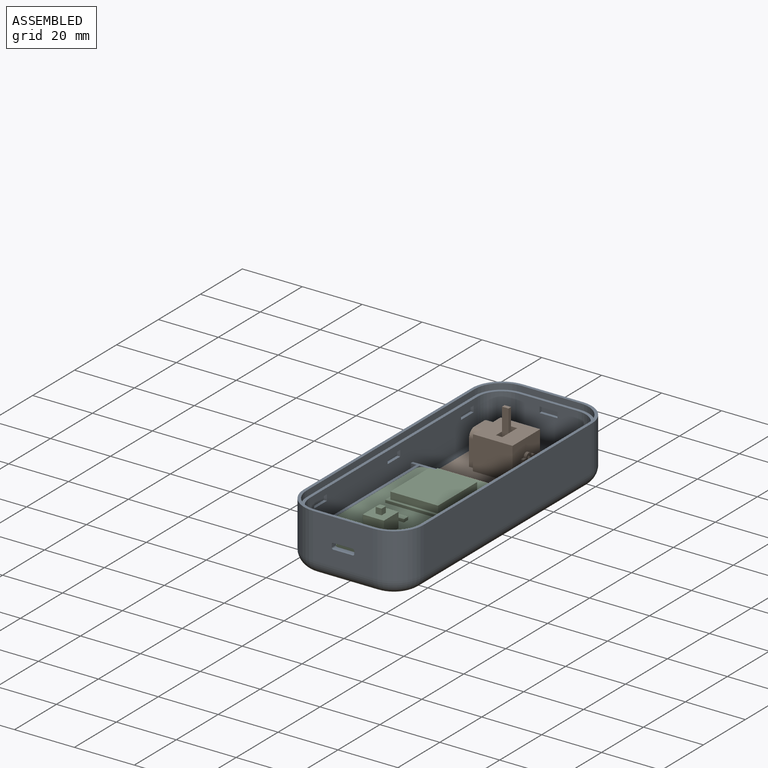
[diagram: assembled view]
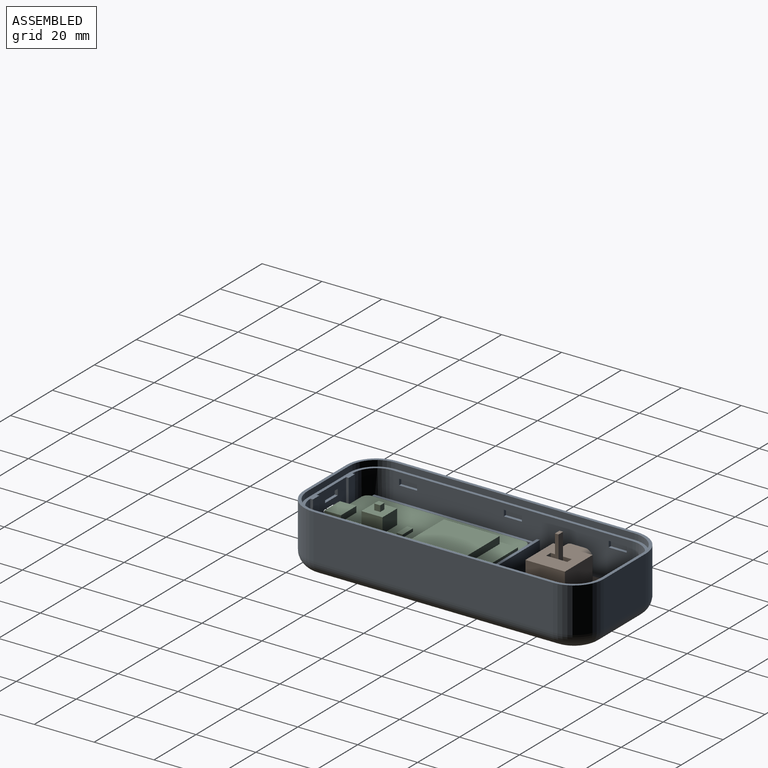
[diagram: assembled view, second angle]
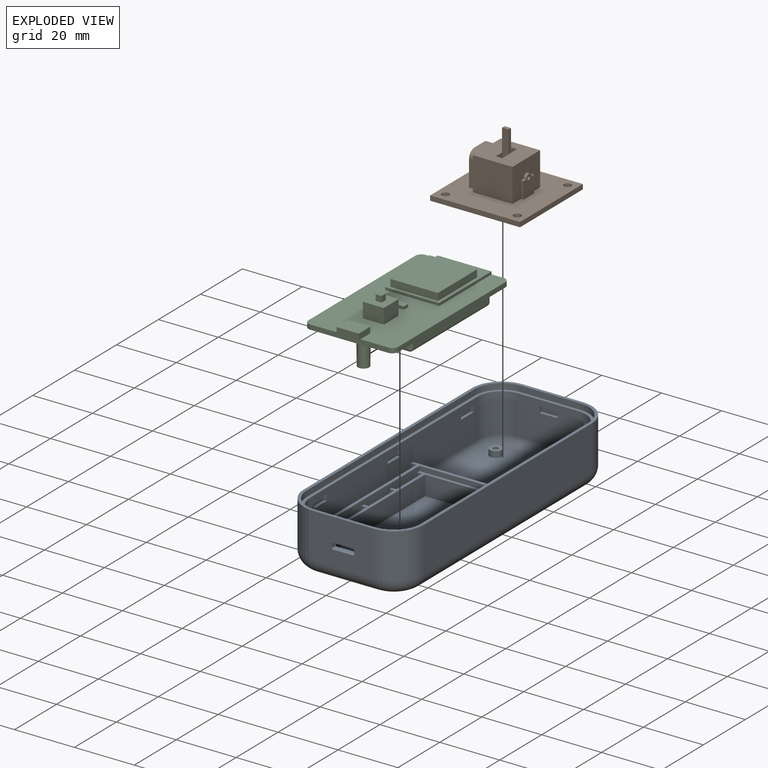
[diagram: exploded view]
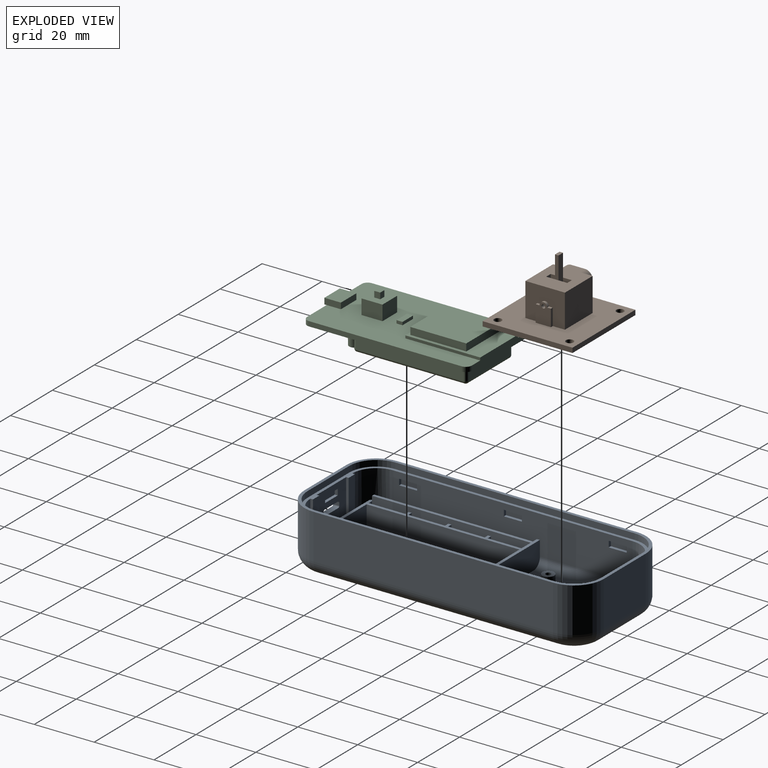
[diagram: exploded view, second angle]
ASSEMBLY  parts=3 mates=4
PART A: 212 faces, bbox 41.7x101.7x20.1 mm
  f0: plane 14x13mm, normal (0,1,0), area 155.2mm2, adj f10,f12,f80,f155,f156,f157,f158,f159
  f1: plane 20x13mm, normal (0,-1,0), area 248mm2, adj f7,f8,f100,f163,f203,f204,f205,f206
  f2: plane 80x13mm, normal (1,0,0), area 984.9mm2, adj f5,f8,f34,f41,f42,f43,f57,f63
  f3: plane 80x13mm, normal (-1,0,0), area 984.9mm2, adj f6,f7,f17,f18,f19,f20,f21,f22
  f4: plane 100x40mm, normal (0,0,1), area 259.7mm2, adj f15,f82,f83,f84,f86,f87,f88,f89
  f5: cylinder r=8mm len=13mm, axis (0,0,1), area 158.5mm2, adj f2,f11,f40,f71,f81,f106,f114,f163
  f6: cylinder r=8mm len=13mm, axis (0,0,-1), area 158.5mm2, adj f3,f14,f24,f40,f70,f106,f115,f163
  f7: cylinder r=8mm len=13mm, axis (0,0,1), area 163.4mm2, adj f1,f3,f98,f163
  f8: cylinder r=8mm len=13mm, axis (0,0,-1), area 163.4mm2, adj f1,f2,f101,f163
  f9: plane 15.09x3mm, normal (0,1,0), area 45.3mm2, adj f10,f11,f80,f163
  f10: plane 15.09x0.85mm, normal (1,0,0), area 12.3mm2, adj f0,f9,f80,f163
  f11: plane 15.09x0.85mm, normal (-1,0,0), area 12.3mm2, adj f5,f9,f81,f163
  f12: plane 15.09x0.85mm, normal (-1,0,0), area 12.3mm2, adj f0,f13,f80,f163
  f13: plane 15.09x3mm, normal (0,1,0), area 45.3mm2, adj f12,f14,f80,f163
  f14: plane 15.09x0.85mm, normal (1,0,0), area 12.3mm2, adj f6,f13,f70,f163
  f15: plane 20x15mm, normal (0,-1,0), area 285.2mm2, adj f4,f86,f87,f95,f155,f156,f157,f158
  f16: plane 30.15x1.6mm, normal (0,-1,0), area 48.2mm2, adj f40,f144,f147,f150
  f17: plane 1.93x1mm, normal (0,0,1), area 1.9mm2, adj f3,f26,f145,f151
  f18: plane 1.93x1mm, normal (0,0,1), area 1.9mm2, adj f3,f32,f33,f151
  f19: plane 1.93x1mm, normal (0,0,1), area 1.9mm2, adj f3,f28,f29,f151
  f20: plane 1.93x1mm, normal (0,0,1), area 1.9mm2, adj f3,f30,f31,f151
  f21: cylinder r=3mm len=12.25mm, axis (0,1,0), area 44.3mm2, adj f3,f28,f33,f151
  f22: cylinder r=3mm len=7.25mm, axis (0,1,0), area 26.2mm2, adj f3,f24,f31,f151
  f23: cylinder r=3mm len=12.25mm, axis (0,1,0), area 44.3mm2, adj f3,f29,f30,f151
  f24: torus R=5mm, axis (0,0,1), area 15.1mm2, adj f6,f22,f115,f151
  f25: cylinder r=3mm len=12.25mm, axis (0,1,0), area 44.3mm2, adj f3,f26,f32,f151
  f26: plane 6.3x1.93mm, normal (0,-1,0), area 10.7mm2, adj f3,f17,f25,f151
  f27: plane 6.29x1.58mm, normal (0,1,0), area 9.5mm2, adj f40,f59,f79,f150
  f28: plane 6.3x1.93mm, normal (0,1,0), area 10.7mm2, adj f3,f19,f21,f151
  f29: plane 6.3x1.93mm, normal (0,-1,0), area 10.7mm2, adj f3,f19,f23,f151
  f30: plane 6.3x1.93mm, normal (0,1,0), area 10.7mm2, adj f3,f20,f23,f151
  f31: plane 6.3x1.93mm, normal (0,-1,0), area 10.7mm2, adj f3,f20,f22,f151
  f32: plane 6.3x1.93mm, normal (0,1,0), area 10.7mm2, adj f3,f18,f25,f151
  f33: plane 6.3x1.93mm, normal (0,-1,0), area 10.7mm2, adj f3,f18,f21,f151
  f34: plane 1.93x1.6mm, normal (0,-1,0), area 3.1mm2, adj f2,f41,f144,f148
  f35: cylinder r=3mm len=12.25mm, axis (0,-1,0), area 0.9mm2, adj f46,f50,f55,f147
  f36: cylinder r=3mm len=7.25mm, axis (0,-1,0), area 0.5mm2, adj f38,f48,f61,f147
  f37: cylinder r=3mm len=12.25mm, axis (0,-1,0), area 0.9mm2, adj f47,f49,f67,f147
  f38: torus R=5mm, axis (0,0,1), area 4.4mm2, adj f36,f45,f61,f62,f147
  f39: cylinder r=3mm len=12.25mm, axis (0,-1,0), area 0.9mm2, adj f44,f51,f74,f147
  f40: plane 54x32.49mm, normal (0,0,1), area 175.2mm2, adj f5,f6,f16,f27,f44,f45,f46,f47
  f41: plane 1.93x1mm, normal (0,0,1), area 1.9mm2, adj f2,f34,f112,f148
  f42: plane 1.93x1mm, normal (0,0,1), area 1.9mm2, adj f2,f124,f125,f148
  f43: plane 1.93x1mm, normal (0,0,1), area 1.9mm2, adj f2,f116,f117,f148
  f44: plane 6.5x1.58mm, normal (0,-1,0), area 10.2mm2, adj f39,f40,f74,f76,f147
  f45: plane 6.29x1.58mm, normal (0,1,0), area 9.5mm2, adj f38,f40,f62,f147
  f46: plane 6.5x1.58mm, normal (0,1,0), area 10.2mm2, adj f35,f40,f55,f56,f147
  f47: plane 6.5x1.58mm, normal (0,-1,0), area 10.2mm2, adj f37,f40,f67,f68,f147
  f48: plane 6.5x1.58mm, normal (0,-1,0), area 10.2mm2, adj f36,f40,f61,f62,f147
  f49: plane 6.5x1.58mm, normal (0,1,0), area 10.2mm2, adj f37,f40,f67,f68,f147
  f50: plane 6.5x1.58mm, normal (0,-1,0), area 10.2mm2, adj f35,f40,f55,f56,f147
  f51: plane 6.5x1.58mm, normal (0,1,0), area 10.2mm2, adj f39,f40,f74,f76,f147
  f52: plane 12.25x1.5mm, normal (0,0,1), area 18.4mm2, adj f53,f54,f118,f127
  f53: plane 12.25x6.5mm, normal (1,0,0), area 79.6mm2, adj f40,f52,f118,f127
  f54: cylinder r=3mm len=12.25mm, axis (0,1,0), area 0.9mm2, adj f52,f118,f127,f150
  f55: plane 12.25x1.5mm, normal (0,0,1), area 18.4mm2, adj f35,f46,f50,f56
  f56: plane 12.25x6.5mm, normal (-1,0,0), area 79.6mm2, adj f40,f46,f50,f55
  f57: cylinder r=3mm len=12.25mm, axis (0,-1,0), area 44.3mm2, adj f2,f116,f124,f148
  f58: plane 10.82x1.5mm, normal (0,0,1), area 14.6mm2, adj f59,f60,f79,f123
  f59: plane 12.25x6.5mm, normal (1,0,0), area 79.5mm2, adj f27,f40,f58,f79,f123
  f60: cylinder r=3mm len=7.25mm, axis (0,1,0), area 0.5mm2, adj f58,f79,f123,f150
  f61: plane 10.82x1.5mm, normal (0,0,1), area 14.6mm2, adj f36,f38,f48,f62
  f62: plane 12.25x6.5mm, normal (-1,0,0), area 79.5mm2, adj f38,f40,f45,f48,f61
  f63: cylinder r=3mm len=7.25mm, axis (0,-1,0), area 26.2mm2, adj f2,f71,f120,f148
  f64: plane 12.25x1.5mm, normal (0,0,1), area 18.4mm2, adj f65,f66,f119,f122
  f65: plane 12.25x6.5mm, normal (1,0,0), area 79.6mm2, adj f40,f64,f119,f122
  f66: cylinder r=3mm len=12.25mm, axis (0,1,0), area 0.9mm2, adj f64,f119,f122,f150
  f67: plane 12.25x1.5mm, normal (0,0,1), area 18.4mm2, adj f37,f47,f49,f68
  f68: plane 12.25x6.5mm, normal (-1,0,0), area 79.6mm2, adj f40,f47,f49,f67
  f69: cylinder r=3mm len=12.25mm, axis (0,-1,0), area 44.3mm2, adj f2,f117,f121,f148
  f70: torus R=5mm, axis (0,0,1), area 15.8mm2, adj f6,f14,f80,f106
  f71: torus R=5mm, axis (0,0,1), area 15.1mm2, adj f5,f63,f114,f148
  f72: plane 12.25x1.5mm, normal (0,0,1), area 18.4mm2, adj f99,f102,f113,f126
  f73: cylinder r=3mm len=31mm, axis (0,1,0), area 146.1mm2, adj f3,f75,f98,f146
  f74: plane 12.25x1.5mm, normal (0,0,1), area 18.4mm2, adj f39,f44,f51,f76
  f75: plane 36x30mm, normal (0,0,1), area 1019mm2, adj f73,f77,f98,f100,f101,f128,f133,f137
  f76: plane 12.25x6.5mm, normal (-1,0,0), area 79.6mm2, adj f40,f44,f51,f74
  f77: cylinder r=3mm len=31mm, axis (0,-1,0), area 146.1mm2, adj f2,f75,f101,f146
  f78: cylinder r=3mm len=12.25mm, axis (0,-1,0), area 44.3mm2, adj f2,f112,f125,f148
  f79: torus R=5mm, axis (0,0,1), area 4.4mm2, adj f27,f58,f59,f60,f150
  f80: cylinder r=3mm len=20mm, axis (1,0,0), area 60mm2, adj f0,f9,f10,f12,f13,f70,f81,f106
  f81: torus R=5mm, axis (0,0,1), area 15.8mm2, adj f5,f11,f80,f106
  f82: plane 80x15mm, normal (-1,0,0), area 1200mm2, adj f4,f86,f89,f96
  f83: plane 80x15mm, normal (1,0,0), area 1200mm2, adj f4,f87,f88,f91
  f84: plane 20x15mm, normal (0,1,0), area 300mm2, adj f4,f88,f89,f92
  f85: plane 90x30mm, normal (0,0,-1), area 2654.8mm2, adj f90,f91,f92,f93,f94,f95,f96,f97
  f86: cylinder r=10mm len=15mm, axis (0,0,1), area 235.6mm2, adj f4,f15,f82,f97
  f87: cylinder r=10mm len=15mm, axis (0,0,-1), area 235.6mm2, adj f4,f15,f83,f93
  f88: cylinder r=10mm len=15mm, axis (0,0,1), area 235.6mm2, adj f4,f83,f84,f90
  f89: cylinder r=10mm len=15mm, axis (0,0,-1), area 235.6mm2, adj f4,f82,f84,f94
  f90: torus R=5mm, axis (0,0,1), area 101mm2, adj f85,f88,f91,f92
  f91: cylinder r=5mm len=80mm, axis (0,1,0), area 628.3mm2, adj f83,f85,f90,f93
  f92: cylinder r=5mm len=20mm, axis (-1,0,0), area 157.1mm2, adj f84,f85,f90,f94
  f93: torus R=5mm, axis (0,0,1), area 101mm2, adj f85,f87,f91,f95
  f94: torus R=5mm, axis (0,0,1), area 101mm2, adj f85,f89,f92,f96
  f95: cylinder r=5mm len=20mm, axis (1,0,0), area 157.1mm2, adj f15,f85,f93,f97
  f96: cylinder r=5mm len=80mm, axis (0,-1,0), area 628.3mm2, adj f82,f85,f94,f97
  f97: torus R=5mm, axis (0,0,1), area 101mm2, adj f85,f86,f95,f96
  f98: torus R=5mm, axis (0,0,1), area 51.1mm2, adj f7,f73,f75,f100
  f99: cylinder r=3mm len=12.25mm, axis (0,1,0), area 0.9mm2, adj f72,f113,f126,f150
  f100: cylinder r=3mm len=20mm, axis (-1,0,0), area 94.2mm2, adj f1,f75,f98,f101
  f101: torus R=5mm, axis (0,0,1), area 51.1mm2, adj f8,f75,f77,f100
  f102: plane 12.25x6.5mm, normal (1,0,0), area 79.6mm2, adj f40,f72,f113,f126
  f103: plane 52.02x6.52mm, normal (-1,0,0), area 338mm2, adj f40,f104,f107,f110,f111
  f104: plane 25x6.5mm, normal (0,1,0), area 162.4mm2, adj f40,f103,f105,f109,f110,f111
  f105: plane 52.02x6.52mm, normal (1,0,0), area 338mm2, adj f40,f104,f107,f109,f111
  f106: plane 30.59x6.33mm, normal (0,-1,0), area 188.1mm2, adj f5,f6,f40,f70,f80,f81
  f107: plane 25x6.5mm, normal (0,-1,0), area 162.5mm2, adj f40,f103,f105,f111
  f108: plane 1.93x1mm, normal (0,0,1), area 1.9mm2, adj f2,f120,f121,f148
  f109: torus R=5mm, axis (0,0,1), area 0.5mm2, adj f104,f105,f111
  f110: torus R=5mm, axis (0,0,1), area 0.5mm2, adj f103,f104,f111
  f111: plane 52x25mm, normal (0,0,1), area 1283mm2, adj f103,f104,f105,f107,f109,f110,f153
  f112: plane 6.3x1.93mm, normal (0,-1,0), area 10.7mm2, adj f2,f41,f78,f148
  f113: plane 6.5x1.58mm, normal (0,-1,0), area 10.2mm2, adj f40,f72,f99,f102,f150
  f114: plane 4.44x0.23mm, normal (0,1,0), area 0.7mm2, adj f5,f40,f71,f148
  f115: plane 4.44x0.23mm, normal (0,1,0), area 0.7mm2, adj f6,f24,f40,f151
  f116: plane 6.3x1.93mm, normal (0,1,0), area 10.7mm2, adj f2,f43,f57,f148
  f117: plane 6.3x1.93mm, normal (0,-1,0), area 10.7mm2, adj f2,f43,f69,f148
  f118: plane 6.5x1.58mm, normal (0,1,0), area 10.2mm2, adj f40,f52,f53,f54,f150
  f119: plane 6.5x1.58mm, normal (0,-1,0), area 10.2mm2, adj f40,f64,f65,f66,f150
  f120: plane 6.3x1.93mm, normal (0,-1,0), area 10.7mm2, adj f2,f63,f108,f148
  f121: plane 6.3x1.93mm, normal (0,1,0), area 10.7mm2, adj f2,f69,f108,f148
  f122: plane 6.5x1.58mm, normal (0,1,0), area 10.2mm2, adj f40,f64,f65,f66,f150
  f123: plane 6.5x1.58mm, normal (0,-1,0), area 10.2mm2, adj f40,f58,f59,f60,f150
  f124: plane 6.3x1.93mm, normal (0,-1,0), area 10.7mm2, adj f2,f42,f57,f148
  f125: plane 6.3x1.93mm, normal (0,1,0), area 10.7mm2, adj f2,f42,f78,f148
  f126: plane 6.5x1.58mm, normal (0,1,0), area 10.2mm2, adj f40,f72,f99,f102,f150
  f127: plane 6.5x1.58mm, normal (0,-1,0), area 10.2mm2, adj f40,f52,f53,f54,f150
  f128: cylinder r=2mm len=4mm, axis (0,0,-1), area 25.1mm2, adj f75,f130
  f129: cylinder r=0.88mm len=2mm, axis (0,0,-1), area 11mm2, adj f130,f131
  f130: plane 4x4mm, normal (0,0,1), area 10.2mm2, adj f128,f129
  f131: plane 1.75x1.75mm, normal (0,0,1), area 2.4mm2, adj f129
  f132: cylinder r=0.88mm len=2mm, axis (0,0,-1), area 11mm2, adj f134,f135
  f133: cylinder r=2mm len=4mm, axis (0,0,-1), area 25.1mm2, adj f75,f134
  f134: plane 4x4mm, normal (0,0,1), area 10.2mm2, adj f132,f133
  f135: plane 1.75x1.75mm, normal (0,0,1), area 2.4mm2, adj f132
  f136: cylinder r=0.88mm len=2mm, axis (0,0,-1), area 11mm2, adj f138,f139
  f137: cylinder r=2mm len=4mm, axis (0,0,-1), area 25.1mm2, adj f75,f138
  f138: plane 4x4mm, normal (0,0,1), area 10.2mm2, adj f136,f137
  f139: plane 1.75x1.75mm, normal (0,0,1), area 2.4mm2, adj f136
  f140: cylinder r=2mm len=4mm, axis (0,0,-1), area 25.1mm2, adj f75,f142
  f141: cylinder r=0.88mm len=2mm, axis (0,0,-1), area 11mm2, adj f142,f143
  f142: plane 4x4mm, normal (0,0,1), area 10.2mm2, adj f140,f141
  f143: plane 1.75x1.75mm, normal (0,0,1), area 2.4mm2, adj f141
  f144: plane 54x36mm, normal (0,0,1), area 142mm2, adj f2,f3,f16,f34,f145,f146,f147,f148
  f145: plane 1.93x1.6mm, normal (0,-1,0), area 3.1mm2, adj f3,f17,f144,f151
  f146: plane 36x8.1mm, normal (0,1,0), area 287.7mm2, adj f2,f3,f73,f75,f77,f144
  f147: plane 53x8.1mm, normal (1,0,0), area 402.3mm2, adj f16,f35,f36,f37,f38,f39,f40,f44
  f148: plane 53x7.9mm, normal (-1,0,0), area 391.3mm2, adj f34,f41,f42,f43,f57,f63,f69,f71
  f149: plane 1.6x1mm, normal (0,-1,0), area 1.6mm2, adj f40,f144,f147,f148
  f150: plane 53x8.1mm, normal (-1,0,0), area 402.3mm2, adj f16,f27,f40,f54,f60,f66,f79,f99
  f151: plane 53x7.9mm, normal (1,0,0), area 391.3mm2, adj f17,f18,f19,f20,f21,f22,f23,f24
  f152: plane 1.6x1mm, normal (0,-1,0), area 1.6mm2, adj f40,f144,f150,f151
  f153: cylinder r=2.25mm len=4.5mm, axis (0,0,1), area 21.2mm2, adj f111,f154
  f154: cone r=2.75mm half-angle=45deg, axis (0,0,-1), area 11.1mm2, adj f85,f153
  f155: plane 2x1mm, normal (1,0,0), area 2mm2, adj f0,f15,f159,f162
  f156: plane 6.5x2mm, normal (0,0,1), area 13mm2, adj f0,f15,f159,f160
  f157: plane 2x1mm, normal (-1,0,0), area 2mm2, adj f0,f15,f160,f161
  f158: plane 6.5x2mm, normal (0,0,-1), area 13mm2, adj f0,f15,f161,f162
  f159: cylinder r=0.5mm len=2mm, axis (0,-1,0), area 1.6mm2, adj f0,f15,f155,f156
  f160: cylinder r=0.5mm len=2mm, axis (0,1,0), area 1.6mm2, adj f0,f15,f156,f157
  f161: cylinder r=0.5mm len=2mm, axis (0,-1,0), area 1.6mm2, adj f0,f15,f157,f158
  f162: cylinder r=0.5mm len=2mm, axis (0,1,0), area 1.6mm2, adj f0,f15,f155,f158
  f163: plane 98x38mm, normal (0,0,1), area 258.5mm2, adj f0,f1,f2,f3,f5,f6,f7,f8
  f164: plane 20x2mm, normal (0,-1,0), area 40mm2, adj f4,f163,f165,f171
  f165: cylinder r=9mm len=9mm, axis (0,0,1), area 28.3mm2, adj f4,f163,f164,f166
  f166: plane 80x2mm, normal (1,0,0), area 160mm2, adj f4,f163,f165,f167
  f167: cylinder r=9mm len=9mm, axis (0,0,1), area 28.3mm2, adj f4,f163,f166,f168
  f168: plane 20x2mm, normal (0,1,0), area 40mm2, adj f4,f163,f167,f169
  f169: cylinder r=9mm len=9mm, axis (0,0,1), area 28.3mm2, adj f4,f163,f168,f170
  f170: plane 80x2mm, normal (-1,0,0), area 160mm2, adj f4,f163,f169,f171
  f171: cylinder r=9mm len=9mm, axis (0,0,1), area 28.3mm2, adj f4,f163,f164,f170
  f172: plane 6x2mm, normal (-1,0,0), area 12mm2, adj f173,f174,f175,f176
  f173: plane 6x1mm, normal (0,0,-1), area 6mm2, adj f3,f172,f174,f176
  f174: plane 2x1mm, normal (0,-1,0), area 2mm2, adj f3,f172,f173,f175
  f175: plane 6x1mm, normal (0,0,1), area 6mm2, adj f3,f172,f174,f176
  f176: plane 2x1mm, normal (0,1,0), area 2mm2, adj f3,f172,f173,f175
  f177: plane 6x2mm, normal (-1,0,0), area 12mm2, adj f178,f179,f180,f181
  f178: plane 6x1mm, normal (0,0,-1), area 6mm2, adj f3,f177,f179,f181
  f179: plane 2x1mm, normal (0,-1,0), area 2mm2, adj f3,f177,f178,f180
  f180: plane 6x1mm, normal (0,0,1), area 6mm2, adj f3,f177,f179,f181
  f181: plane 2x1mm, normal (0,1,0), area 2mm2, adj f3,f177,f178,f180
  f182: plane 6x2mm, normal (-1,0,0), area 12mm2, adj f183,f184,f185,f186
  f183: plane 6x1mm, normal (0,0,-1), area 6mm2, adj f3,f182,f184,f186
  f184: plane 2x1mm, normal (0,-1,0), area 2mm2, adj f3,f182,f183,f185
  f185: plane 6x1mm, normal (0,0,1), area 6mm2, adj f3,f182,f184,f186
  f186: plane 2x1mm, normal (0,1,0), area 2mm2, adj f3,f182,f183,f185
  f187: plane 2x1mm, normal (0,1,0), area 2mm2, adj f2,f188,f190,f191
  f188: plane 6x1mm, normal (0,0,1), area 6mm2, adj f2,f187,f189,f191
  f189: plane 2x1mm, normal (0,-1,0), area 2mm2, adj f2,f188,f190,f191
  f190: plane 6x1mm, normal (0,0,-1), area 6mm2, adj f2,f187,f189,f191
  f191: plane 6x2mm, normal (1,0,0), area 12mm2, adj f187,f188,f189,f190
  f192: plane 2x1mm, normal (0,1,0), area 2mm2, adj f2,f193,f195,f196
  f193: plane 6x1mm, normal (0,0,1), area 6mm2, adj f2,f192,f194,f196
  f194: plane 2x1mm, normal (0,-1,0), area 2mm2, adj f2,f193,f195,f196
  f195: plane 6x1mm, normal (0,0,-1), area 6mm2, adj f2,f192,f194,f196
  f196: plane 6x2mm, normal (1,0,0), area 12mm2, adj f192,f193,f194,f195
  f197: plane 2x1mm, normal (0,1,0), area 2mm2, adj f2,f198,f200,f201
  f198: plane 6x1mm, normal (0,0,1), area 6mm2, adj f2,f197,f199,f201
  f199: plane 2x1mm, normal (0,-1,0), area 2mm2, adj f2,f198,f200,f201
  f200: plane 6x1mm, normal (0,0,-1), area 6mm2, adj f2,f197,f199,f201
  f201: plane 6x2mm, normal (1,0,0), area 12mm2, adj f197,f198,f199,f200
  f202: plane 6x2mm, normal (0,-1,0), area 12mm2, adj f203,f204,f205,f206
  f203: plane 2x1mm, normal (-1,0,0), area 2mm2, adj f1,f202,f204,f206
  f204: plane 6x1mm, normal (0,0,1), area 6mm2, adj f1,f202,f203,f205
  f205: plane 2x1mm, normal (1,0,0), area 2mm2, adj f1,f202,f204,f206
  f206: plane 6x1mm, normal (0,0,-1), area 6mm2, adj f1,f202,f203,f205
  f207: plane 6x1mm, normal (0,0,-1), area 6mm2, adj f0,f208,f210,f211
  f208: plane 2x1mm, normal (1,0,0), area 2mm2, adj f0,f207,f209,f211
  f209: plane 6x1mm, normal (0,0,1), area 6mm2, adj f0,f208,f210,f211
  f210: plane 2x1mm, normal (-1,0,0), area 2mm2, adj f0,f207,f209,f211
  f211: plane 6x2mm, normal (0,1,0), area 12mm2, adj f207,f208,f209,f210
PART B: 44 faces, bbox 30x30x20.3 mm
  f0: plane 10.16x7.06mm, normal (0,1,0), area 59.7mm2, adj f1,f19,f20,f21,f24,f38,f40,f42
  f1: plane 15.75x13.21mm, normal (0,0,1), area 170.8mm2, adj f0,f2,f3,f4,f5,f6,f9,f10
  f2: plane 13.21x11.18mm, normal (0,1,0), area 116.7mm2, adj f1,f4,f6,f12,f13,f14,f15,f16
  f3: plane 11.18x4.32mm, normal (0,-1,0), area 21.3mm2, adj f1,f4,f7,f10,f26
  f4: plane 13.21x11.18mm, normal (-1,0,0), area 147.6mm2, adj f1,f2,f3,f26
  f5: plane 11.18x4.32mm, normal (0,-1,0), area 21.3mm2, adj f1,f6,f8,f11,f26
  f6: plane 13.21x11.18mm, normal (1,0,0), area 147.6mm2, adj f1,f2,f5,f26
  f7: plane 8.64x2.54mm, normal (-1,0,0), area 21.9mm2, adj f3,f9,f10,f26
  f8: plane 8.64x2.54mm, normal (1,0,0), area 21.9mm2, adj f5,f9,f11,f26
  f9: plane 11.18x9.65mm, normal (0,-1,0), area 100mm2, adj f1,f7,f8,f10,f11,f22,f26
  f10: cylinder r=2.54mm len=2.54mm, axis (0,-1,0), area 10.1mm2, adj f1,f3,f7,f9
  f11: cylinder r=2.54mm len=2.54mm, axis (0,1,0), area 10.1mm2, adj f1,f5,f8,f9
  f12: plane 5.59x0.89mm, normal (-1,0,0), area 5mm2, adj f2,f13,f17,f26
  f13: plane 1.27x0.89mm, normal (0,0,1), area 1.1mm2, adj f2,f12,f14,f17
  f14: cylinder r=1.27mm len=2.54mm, axis (0,-1,0), area 3.5mm2, adj f2,f13,f15,f17
  f15: plane 1.27x0.89mm, normal (0,0,1), area 1.1mm2, adj f2,f14,f16,f17
  f16: plane 5.59x0.89mm, normal (1,0,0), area 5mm2, adj f2,f15,f17,f26
  f17: plane 6.86x5.08mm, normal (0,1,0), area 29.7mm2, adj f12,f13,f14,f15,f16,f25,f26
  f18: plane 10.16x7.06mm, normal (0,-1,0), area 59.7mm2, adj f1,f19,f20,f21,f25,f38,f40,f42
  f19: plane 10.16x2.16mm, normal (1,0,0), area 21.9mm2, adj f0,f1,f18,f21
  f20: plane 10.16x2.16mm, normal (-1,0,0), area 21.9mm2, adj f0,f1,f18,f21
  f21: plane 7.06x2.16mm, normal (0,0,1), area 15.2mm2, adj f0,f18,f19,f20
  f22: cylinder r=1.27mm len=2.54mm, axis (0,1,0), area 7.1mm2, adj f9,f23
  f23: plane 2.54x2.54mm, normal (0,-1,0), area 3.8mm2, adj f22,f24
  f24: cylinder r=0.64mm len=8.95mm, axis (0,-1,0), area 35.7mm2, adj f0,f23,f36
  f25: cylinder r=0.64mm len=6.41mm, axis (0,-1,0), area 25.6mm2, adj f17,f18,f37
  f26: plane 30x30mm, normal (0,0,1), area 676.9mm2, adj f2,f3,f4,f5,f6,f7,f8,f9
  f27: plane 30x1.6mm, normal (1,0,0), area 48mm2, adj f26,f28,f30,f31
  f28: plane 30x1.6mm, normal (0,-1,0), area 48mm2, adj f26,f27,f29,f31
  f29: plane 30x1.6mm, normal (-1,0,0), area 48mm2, adj f26,f28,f30,f31
  f30: plane 30x1.6mm, normal (0,1,0), area 48mm2, adj f26,f27,f29,f31
  f31: plane 30x30mm, normal (0,0,-1), area 880.4mm2, adj f27,f28,f29,f30,f32,f33,f34,f35
  f32: cylinder r=1.25mm len=2.5mm, axis (0,0,1), area 12.6mm2, adj f26,f31
  f33: cylinder r=1.25mm len=2.5mm, axis (0,0,1), area 12.6mm2, adj f26,f31
  f34: cylinder r=1.25mm len=2.5mm, axis (0,0,1), area 12.6mm2, adj f26,f31
  f35: cylinder r=1.25mm len=2.5mm, axis (0,0,1), area 12.6mm2, adj f26,f31
  f36: plane 1.27x1.2mm, normal (0,-1,0), area 1.2mm2, adj f24,f38,f40
  f37: plane 1.27x1.2mm, normal (0,1,0), area 1.2mm2, adj f25,f38,f40
  f38: plane 17.5x2.16mm, normal (-1,0,0), area 37.8mm2, adj f0,f18,f36,f37,f39,f41,f42,f43
  f39: plane 7.5x1.2mm, normal (0,-1,0), area 9mm2, adj f1,f38,f40,f43
  f40: plane 17.5x2.16mm, normal (1,0,0), area 37.8mm2, adj f0,f18,f36,f37,f39,f41,f42,f43
  f41: plane 7.5x1.2mm, normal (0,1,0), area 9mm2, adj f1,f38,f40,f43
  f42: plane 2.16x1.2mm, normal (0,0,-1), area 2.6mm2, adj f0,f18,f38,f40
  f43: plane 2.16x1.2mm, normal (0,0,1), area 2.6mm2, adj f38,f39,f40,f41
PART C: 64 faces, bbox 30x55.8x18.6 mm
  f0: plane 7x7mm, normal (0,0,1), area 45mm2, adj f16,f17,f18,f19,f35,f36,f37,f38
  f1: plane 55x30mm, normal (0,0,1), area 1102.4mm2, adj f3,f4,f5,f6,f8,f9,f10,f16
  f2: plane 25x18mm, normal (0,0,1), area 152.9mm2, adj f3,f8,f9,f10,f11,f12,f13,f14
  f3: plane 26x2.5mm, normal (0,1,0), area 57.8mm2, adj f1,f2,f7,f8,f10,f60,f63
  f4: plane 51x1.6mm, normal (-1,0,0), area 81.6mm2, adj f1,f7,f60,f61
  f5: plane 26x1.6mm, normal (0,-1,0), area 41.6mm2, adj f1,f7,f20,f61,f62
  f6: plane 51x1.6mm, normal (1,0,0), area 81.6mm2, adj f1,f7,f62,f63
  f7: plane 55x30mm, normal (0,0,-1), area 775.4mm2, adj f3,f4,f5,f6,f26,f27,f28,f29
  f8: plane 25x0.9mm, normal (-1,0,0), area 22.5mm2, adj f1,f2,f3,f9
  f9: plane 18x0.9mm, normal (0,-1,0), area 16.2mm2, adj f1,f2,f8,f10
  f10: plane 25x0.9mm, normal (1,0,0), area 22.5mm2, adj f1,f2,f3,f9
  f11: plane 18.66x2.4mm, normal (-1,0,0), area 44.8mm2, adj f2,f12,f14,f15
  f12: plane 15.92x2.4mm, normal (0,-1,0), area 38.2mm2, adj f2,f11,f13,f15
  f13: plane 18.66x2.4mm, normal (1,0,0), area 44.8mm2, adj f2,f12,f14,f15
  f14: plane 15.92x2.4mm, normal (0,1,0), area 38.2mm2, adj f2,f11,f13,f15
  f15: plane 18.66x15.92mm, normal (0,0,1), area 297.1mm2, adj f11,f12,f13,f14
  f16: plane 7x5mm, normal (0,1,0), area 35mm2, adj f0,f1,f17,f19
  f17: plane 7x5mm, normal (-1,0,0), area 35mm2, adj f0,f1,f16,f18
  f18: plane 7x5mm, normal (0,-1,0), area 35mm2, adj f0,f1,f17,f19
  f19: plane 7x5mm, normal (1,0,0), area 35mm2, adj f0,f1,f16,f18
  f20: plane 7.4x0.75mm, normal (0,0,-1), area 5.6mm2, adj f5,f21,f22,f23
  f21: plane 5.5x2mm, normal (-1,0,0), area 11mm2, adj f1,f20,f22,f24,f25
  f22: plane 7.4x2mm, normal (0,-1,0), area 14.8mm2, adj f20,f21,f23,f25
  f23: plane 5.5x2mm, normal (1,0,0), area 11mm2, adj f1,f20,f22,f24,f25
  f24: plane 7.4x2mm, normal (0,1,0), area 14.8mm2, adj f1,f21,f23,f25
  f25: plane 7.4x5.5mm, normal (0,0,1), area 40.7mm2, adj f21,f22,f23,f24
  f26: plane 20x5mm, normal (0,-1,0), area 100mm2, adj f7,f31,f50,f52
  f27: plane 36x5mm, normal (-1,0,0), area 180mm2, adj f7,f32,f52,f54
  f28: plane 20x5mm, normal (0,1,0), area 100mm2, adj f7,f34,f54,f56
  f29: plane 36x5mm, normal (1,0,0), area 180mm2, adj f7,f33,f50,f56
  f30: plane 36x20mm, normal (0,0,-1), area 720mm2, adj f31,f32,f33,f34
  f31: cylinder r=1mm len=20mm, axis (1,0,0), area 31.4mm2, adj f26,f30,f51,f53
  f32: cylinder r=1mm len=36mm, axis (0,-1,0), area 56.5mm2, adj f27,f30,f53,f55
  f33: cylinder r=1mm len=36mm, axis (0,1,0), area 56.5mm2, adj f29,f30,f51,f57
  f34: cylinder r=1mm len=20mm, axis (-1,0,0), area 31.4mm2, adj f28,f30,f55,f57
  f35: plane 2x2mm, normal (0,1,0), area 4mm2, adj f0,f36,f38,f39
  f36: plane 2x2mm, normal (-1,0,0), area 4mm2, adj f0,f35,f37,f39
  f37: plane 2x2mm, normal (0,-1,0), area 4mm2, adj f0,f36,f38,f39
  f38: plane 2x2mm, normal (1,0,0), area 4mm2, adj f0,f35,f37,f39
  f39: plane 2x2mm, normal (0,0,1), area 4mm2, adj f35,f36,f37,f38
  f40: plane 5x1mm, normal (0,1,0), area 5mm2, adj f1,f41,f43,f44
  f41: plane 2x1mm, normal (-1,0,0), area 2mm2, adj f1,f40,f42,f44
  f42: plane 5x1mm, normal (0,-1,0), area 5mm2, adj f1,f41,f43,f44
  f43: plane 2x1mm, normal (1,0,0), area 2mm2, adj f1,f40,f42,f44
  f44: plane 5x2mm, normal (0,0,1), area 10mm2, adj f40,f41,f42,f43
  f45: plane 6x2mm, normal (-1,0,0), area 12mm2, adj f7,f46,f48,f49
  f46: plane 6x2mm, normal (0,1,0), area 12mm2, adj f7,f45,f47,f49
  f47: plane 6x2mm, normal (1,0,0), area 12mm2, adj f7,f46,f48,f49
  f48: plane 6x2mm, normal (0,-1,0), area 12mm2, adj f7,f45,f47,f49
  f49: plane 6x6mm, normal (0,0,-1), area 23.4mm2, adj f45,f46,f47,f48,f58
  f50: cylinder r=1mm len=5mm, axis (0,0,1), area 7.9mm2, adj f7,f26,f29,f51
  f51: sphere r=1mm, area 1.6mm2, adj f31,f33,f50
  f52: cylinder r=1mm len=5mm, axis (0,0,-1), area 7.9mm2, adj f7,f26,f27,f53
  f53: sphere r=1mm, area 1.6mm2, adj f31,f32,f52
  f54: cylinder r=1mm len=5mm, axis (0,0,1), area 7.9mm2, adj f7,f27,f28,f55
  f55: sphere r=1mm, area 1.6mm2, adj f32,f34,f54
  f56: cylinder r=1mm len=5mm, axis (0,0,-1), area 7.9mm2, adj f7,f28,f29,f57
  f57: sphere r=1mm, area 1.6mm2, adj f33,f34,f56
  f58: cone r=2mm half-angle=1deg, axis (0,0,1), area 97mm2, adj f49,f59
  f59: plane 3.72x3.72mm, normal (0,0,-1), area 10.9mm2, adj f58
  f60: cylinder r=2mm len=2mm, axis (0,0,1), area 5mm2, adj f1,f3,f4,f7
  f61: cylinder r=2mm len=2mm, axis (0,0,-1), area 5mm2, adj f1,f4,f5,f7
  f62: cylinder r=2mm len=2mm, axis (0,0,1), area 5mm2, adj f1,f5,f6,f7
  f63: cylinder r=2mm len=2mm, axis (0,0,-1), area 5mm2, adj f1,f3,f6,f7
PLACE A t=(-15.83,12.13,25.99)mm
PLACE B rot(axis=(0,0,-1),90deg) t=(-15.83,40.13,31.59)mm
PLACE C t=(-15.83,-7.37,34.49)mm
MATE planar B.f31 <-> A.f128  axis (0,0,-1) through (-15.83,40.13,29.99)mm
MATE cylindrical B.f33 <-> A.f136  axis (0,0,1) through (-3.83,28.13,31.59)mm
MATE planar C.f3 <-> A.f16  axis (0,1,0) through (-15.83,20.13,35.64)mm
MATE planar A.f40 <-> C.f7  axis (0,0,1) through (-29.33,-6.37,34.49)mm
